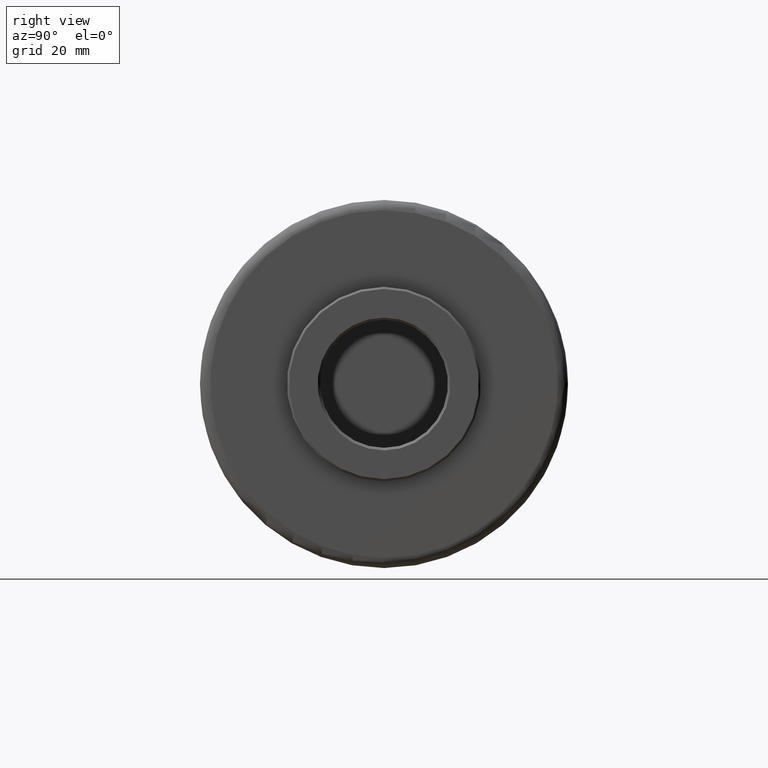
[diagram: clean part render]
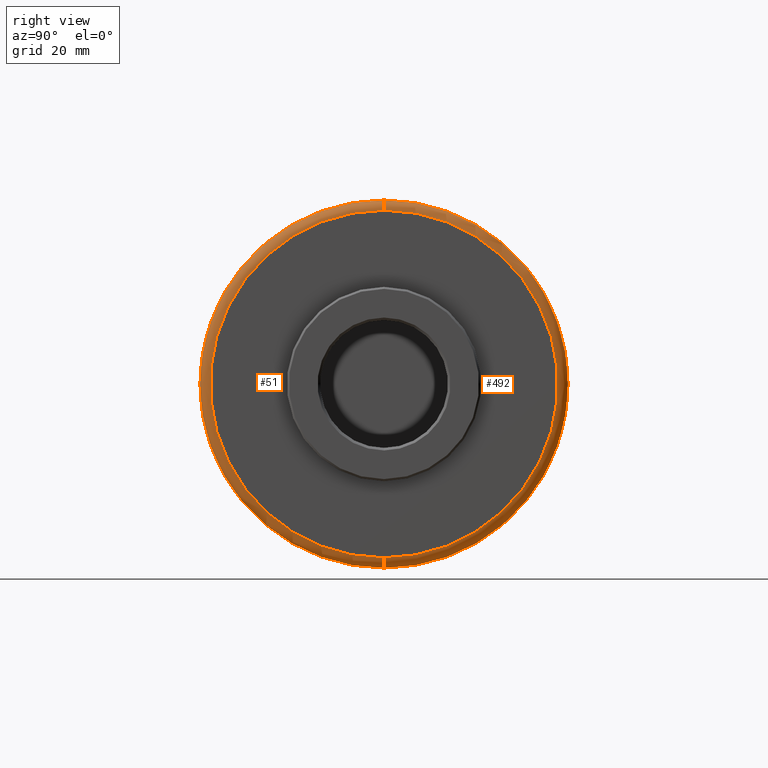
[diagram: same view with one multi-face feature highlighted, each face labeled with its STEP entity id]
A machine part, right view. The highlighted faces form ONE feature: a constant-radius fillet chain: 2 tangent blend faces with common blend radius 2 mm. The faces share edges in the B-rep.
Their STEP definitions:
[1] entity #51 (Torus):
#7 = CIRCLE ( 'NONE', #955, 36.00000000000001400 ) ;
#46 = CIRCLE ( 'NONE', #1327, 34.00000000000000700 ) ;
#51 = ADVANCED_FACE ( 'NONE', ( #1187 ), #1161, .T. ) ;
#63 = CARTESIAN_POINT ( 'NONE',  ( 96.50000000000000000, 0.0000000000000000000, 34.00000000000000700 ) ) ;
#66 = DIRECTION ( 'NONE',  ( 0.0000000000000000000, 0.0000000000000000000, 1.000000000000000000 ) ) ;
#181 = DIRECTION ( 'NONE',  ( -1.000000000000000000, 0.0000000000000000000, 0.0000000000000000000 ) ) ;
#211 = ORIENTED_EDGE ( 'NONE', *, *, #881, .T. ) ;
#238 = CIRCLE ( 'NONE', #347, 2.000000000000001800 ) ;
#250 = CARTESIAN_POINT ( 'NONE',  ( 94.50000000000000000, 0.0000000000000000000, 36.00000000000001400 ) ) ;
#256 = DIRECTION ( 'NONE',  ( 0.0000000000000000000, 0.0000000000000000000, 1.000000000000000000 ) ) ;
#308 = VERTEX_POINT ( 'NONE', #250 ) ;
#347 = AXIS2_PLACEMENT_3D ( 'NONE', #1025, #1083, #918 ) ;
#348 = CARTESIAN_POINT ( 'NONE',  ( 94.50000000000000000, 4.408728476930472400E-015, -36.00000000000001400 ) ) ;
#455 = CARTESIAN_POINT ( 'NONE',  ( 94.50000000000000000, 4.163799117101001300E-015, -34.00000000000000700 ) ) ;
#584 = ORIENTED_EDGE ( 'NONE', *, *, #1131, .F. ) ;
#634 = DIRECTION ( 'NONE',  ( -1.000000000000000000, 0.0000000000000000000, 0.0000000000000000000 ) ) ;
#636 = CIRCLE ( 'NONE', #865, 2.000000000000001800 ) ;
#735 = VERTEX_POINT ( 'NONE', #812 ) ;
#786 = VERTEX_POINT ( 'NONE', #63 ) ;
#812 = CARTESIAN_POINT ( 'NONE',  ( 96.50000000000000000, 4.286263797015737300E-015, -34.00000000000000700 ) ) ;
#856 = EDGE_CURVE ( 'NONE', #1299, #308, #7, .T. ) ;
#861 = ORIENTED_EDGE ( 'NONE', *, *, #856, .F. ) ;
#862 = DIRECTION ( 'NONE',  ( 0.0000000000000000000, 1.000000000000000000, 1.224646799147353200E-016 ) ) ;
#865 = AXIS2_PLACEMENT_3D ( 'NONE', #455, #862, #972 ) ;
#881 = EDGE_CURVE ( 'NONE', #786, #308, #238, .T. ) ;
#915 = DIRECTION ( 'NONE',  ( 0.0000000000000000000, 0.0000000000000000000, 1.000000000000000000 ) ) ;
#918 = DIRECTION ( 'NONE',  ( 0.0000000000000000000, 0.0000000000000000000, -1.000000000000000000 ) ) ;
#955 = AXIS2_PLACEMENT_3D ( 'NONE', #1344, #634, #915 ) ;
#972 = DIRECTION ( 'NONE',  ( 0.0000000000000000000, -1.224646799147353500E-016, 1.000000000000000000 ) ) ;
#1025 = CARTESIAN_POINT ( 'NONE',  ( 94.50000000000000000, 0.0000000000000000000, 34.00000000000000700 ) ) ;
#1045 = DIRECTION ( 'NONE',  ( 1.000000000000000000, -0.0000000000000000000, -0.0000000000000000000 ) ) ;
#1083 = DIRECTION ( 'NONE',  ( 0.0000000000000000000, -1.000000000000000000, 0.0000000000000000000 ) ) ;
#1117 = EDGE_LOOP ( 'NONE', ( #1175, #584, #211, #861 ) ) ;
#1131 = EDGE_CURVE ( 'NONE', #786, #735, #46, .T. ) ;
#1148 = CARTESIAN_POINT ( 'NONE',  ( 94.50000000000000000, 0.0000000000000000000, 0.0000000000000000000 ) ) ;
#1161 = TOROIDAL_SURFACE ( 'NONE', #1210, 34.00000000000000700, 2.000000000000000000 ) ;
#1175 = ORIENTED_EDGE ( 'NONE', *, *, #1307, .F. ) ;
#1187 = FACE_OUTER_BOUND ( 'NONE', #1117, .T. ) ;
#1210 = AXIS2_PLACEMENT_3D ( 'NONE', #1148, #181, #256 ) ;
#1245 = CARTESIAN_POINT ( 'NONE',  ( 96.50000000000000000, 0.0000000000000000000, 0.0000000000000000000 ) ) ;
#1299 = VERTEX_POINT ( 'NONE', #348 ) ;
#1307 = EDGE_CURVE ( 'NONE', #735, #1299, #636, .T. ) ;
#1327 = AXIS2_PLACEMENT_3D ( 'NONE', #1245, #1045, #66 ) ;
#1344 = CARTESIAN_POINT ( 'NONE',  ( 94.50000000000000000, 0.0000000000000000000, 0.0000000000000000000 ) ) ;
[2] entity #492 (Torus):
#3 = AXIS2_PLACEMENT_3D ( 'NONE', #689, #6, #978 ) ;
#6 = DIRECTION ( 'NONE',  ( 1.000000000000000000, -0.0000000000000000000, -0.0000000000000000000 ) ) ;
#37 = ORIENTED_EDGE ( 'NONE', *, *, #114, .F. ) ;
#63 = CARTESIAN_POINT ( 'NONE',  ( 96.50000000000000000, 0.0000000000000000000, 34.00000000000000700 ) ) ;
#114 = EDGE_CURVE ( 'NONE', #308, #1299, #241, .T. ) ;
#238 = CIRCLE ( 'NONE', #347, 2.000000000000001800 ) ;
#241 = CIRCLE ( 'NONE', #1049, 36.00000000000001400 ) ;
#250 = CARTESIAN_POINT ( 'NONE',  ( 94.50000000000000000, 0.0000000000000000000, 36.00000000000001400 ) ) ;
#308 = VERTEX_POINT ( 'NONE', #250 ) ;
#347 = AXIS2_PLACEMENT_3D ( 'NONE', #1025, #1083, #918 ) ;
#348 = CARTESIAN_POINT ( 'NONE',  ( 94.50000000000000000, 4.408728476930472400E-015, -36.00000000000001400 ) ) ;
#376 = ORIENTED_EDGE ( 'NONE', *, *, #881, .F. ) ;
#455 = CARTESIAN_POINT ( 'NONE',  ( 94.50000000000000000, 4.163799117101001300E-015, -34.00000000000000700 ) ) ;
#479 = EDGE_LOOP ( 'NONE', ( #1269, #828, #37, #376 ) ) ;
#492 = ADVANCED_FACE ( 'NONE', ( #1320 ), #752, .T. ) ;
#636 = CIRCLE ( 'NONE', #865, 2.000000000000001800 ) ;
#689 = CARTESIAN_POINT ( 'NONE',  ( 96.50000000000000000, 0.0000000000000000000, 0.0000000000000000000 ) ) ;
#735 = VERTEX_POINT ( 'NONE', #812 ) ;
#736 = CARTESIAN_POINT ( 'NONE',  ( 94.50000000000000000, 0.0000000000000000000, 0.0000000000000000000 ) ) ;
#752 = TOROIDAL_SURFACE ( 'NONE', #1241, 34.00000000000000700, 2.000000000000000000 ) ;
#786 = VERTEX_POINT ( 'NONE', #63 ) ;
#812 = CARTESIAN_POINT ( 'NONE',  ( 96.50000000000000000, 4.286263797015737300E-015, -34.00000000000000700 ) ) ;
#828 = ORIENTED_EDGE ( 'NONE', *, *, #1307, .T. ) ;
#830 = EDGE_CURVE ( 'NONE', #735, #786, #1084, .T. ) ;
#862 = DIRECTION ( 'NONE',  ( 0.0000000000000000000, 1.000000000000000000, 1.224646799147353200E-016 ) ) ;
#865 = AXIS2_PLACEMENT_3D ( 'NONE', #455, #862, #972 ) ;
#881 = EDGE_CURVE ( 'NONE', #786, #308, #238, .T. ) ;
#918 = DIRECTION ( 'NONE',  ( 0.0000000000000000000, 0.0000000000000000000, -1.000000000000000000 ) ) ;
#972 = DIRECTION ( 'NONE',  ( 0.0000000000000000000, -1.224646799147353500E-016, 1.000000000000000000 ) ) ;
#978 = DIRECTION ( 'NONE',  ( 0.0000000000000000000, 0.0000000000000000000, 1.000000000000000000 ) ) ;
#1025 = CARTESIAN_POINT ( 'NONE',  ( 94.50000000000000000, 0.0000000000000000000, 34.00000000000000700 ) ) ;
#1049 = AXIS2_PLACEMENT_3D ( 'NONE', #736, #1266, #1280 ) ;
#1083 = DIRECTION ( 'NONE',  ( 0.0000000000000000000, -1.000000000000000000, 0.0000000000000000000 ) ) ;
#1084 = CIRCLE ( 'NONE', #3, 34.00000000000000700 ) ;
#1100 = DIRECTION ( 'NONE',  ( 0.0000000000000000000, 0.0000000000000000000, 1.000000000000000000 ) ) ;
#1206 = CARTESIAN_POINT ( 'NONE',  ( 94.50000000000000000, 0.0000000000000000000, 0.0000000000000000000 ) ) ;
#1241 = AXIS2_PLACEMENT_3D ( 'NONE', #1206, #1316, #1100 ) ;
#1266 = DIRECTION ( 'NONE',  ( -1.000000000000000000, 0.0000000000000000000, 0.0000000000000000000 ) ) ;
#1269 = ORIENTED_EDGE ( 'NONE', *, *, #830, .F. ) ;
#1280 = DIRECTION ( 'NONE',  ( 0.0000000000000000000, 0.0000000000000000000, 1.000000000000000000 ) ) ;
#1299 = VERTEX_POINT ( 'NONE', #348 ) ;
#1307 = EDGE_CURVE ( 'NONE', #735, #1299, #636, .T. ) ;
#1316 = DIRECTION ( 'NONE',  ( -1.000000000000000000, 0.0000000000000000000, 0.0000000000000000000 ) ) ;
#1320 = FACE_OUTER_BOUND ( 'NONE', #479, .T. ) ;